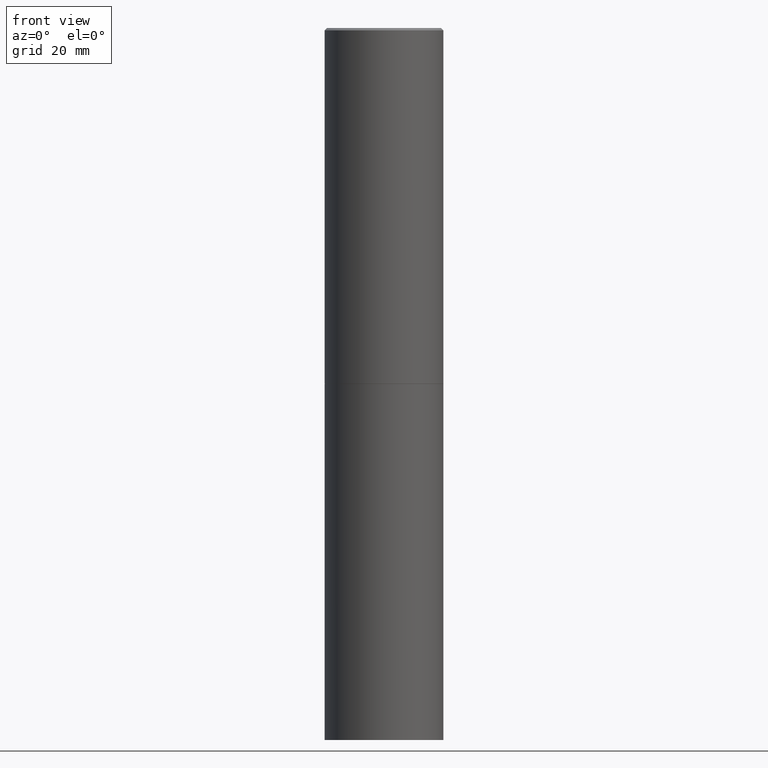
[diagram: clean part render]
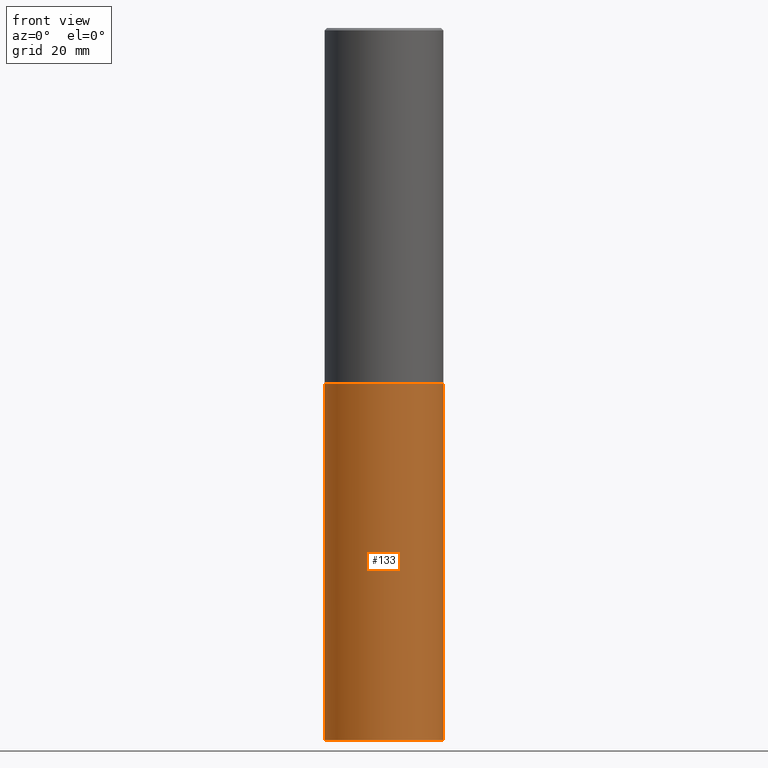
[diagram: same view with one face highlighted and labeled with its STEP entity id]
A machine part, front view. The second image highlights one B-rep face of the part: STEP entity #133.
In plain terms, the highlighted cylindrical surface (partial cylindrical patch) has radius 12.5006 mm, axis along (-0, 0, 1).
Its self-contained STEP definition (entity closure, byte-faithful):
#1 = DIRECTION ( 'NONE',  ( 1.000000000000000000, -6.982962677686265922E-15, 4.876176775795935793E-29 ) ) ;
#16 = AXIS2_PLACEMENT_3D ( 'NONE', #224, #110, #1 ) ;
#30 = ORIENTED_EDGE ( 'NONE', *, *, #206, .T. ) ;
#32 = VECTOR ( 'NONE', #118, 39.37007874015748143 ) ;
#33 = CARTESIAN_POINT ( 'NONE',  ( 0.4921499999999999764, -3.436665081823295777E-15, 2.399810400207969603E-29 ) ) ;
#46 = VERTEX_POINT ( 'NONE', #193 ) ;
#54 = CARTESIAN_POINT ( 'NONE',  ( 7.220735744022852519E-29, -1.030929694920215502E-14, -2.952700000000000102 ) ) ;
#86 = DIRECTION ( 'NONE',  ( 1.000000000000000000, -6.982962677686265922E-15, 0.000000000000000000 ) ) ;
#104 = EDGE_CURVE ( 'NONE', #46, #160, #134, .T. ) ;
#107 = AXIS2_PLACEMENT_3D ( 'NONE', #143, #336, #86 ) ;
#110 = DIRECTION ( 'NONE',  ( -2.445468806185136597E-29, 3.491481338843145583E-15, 1.000000000000000000 ) ) ;
#112 = CIRCLE ( 'NONE', #107, 0.4921499999999999764 ) ;
#118 = DIRECTION ( 'NONE',  ( -2.445468806185136877E-29, 3.491481338843145188E-15, 1.000000000000000000 ) ) ;
#133 = ADVANCED_FACE ( 'NONE', ( #169 ), #253, .T. ) ;
#134 = CIRCLE ( 'NONE', #230, 0.4921499999999999764 ) ;
#138 = CARTESIAN_POINT ( 'NONE',  ( -0.4921499999999999764, -1.196718392382684217E-14, -5.905499999999999972 ) ) ;
#143 = CARTESIAN_POINT ( 'NONE',  ( 1.444171603492632270E-28, -2.061894304653819197E-14, -5.905499999999999972 ) ) ;
#154 = VERTEX_POINT ( 'NONE', #138 ) ;
#156 = EDGE_CURVE ( 'NONE', #154, #329, #112, .T. ) ;
#160 = VERTEX_POINT ( 'NONE', #257 ) ;
#162 = EDGE_LOOP ( 'NONE', ( #358, #202, #30, #243 ) ) ;
#169 = FACE_OUTER_BOUND ( 'NONE', #162, .T. ) ;
#180 = LINE ( 'NONE', #345, #292 ) ;
#193 = CARTESIAN_POINT ( 'NONE',  ( -0.4921499999999999764, -1.196718392382684217E-14, -2.952700000000000102 ) ) ;
#202 = ORIENTED_EDGE ( 'NONE', *, *, #156, .T. ) ;
#204 = LINE ( 'NONE', #33, #32 ) ;
#206 = EDGE_CURVE ( 'NONE', #329, #160, #204, .T. ) ;
#222 = DIRECTION ( 'NONE',  ( 1.000000000000000000, -6.982962677686265922E-15, 0.000000000000000000 ) ) ;
#224 = CARTESIAN_POINT ( 'NONE',  ( 0.000000000000000000, 0.000000000000000000, 0.000000000000000000 ) ) ;
#230 = AXIS2_PLACEMENT_3D ( 'NONE', #54, #312, #222 ) ;
#243 = ORIENTED_EDGE ( 'NONE', *, *, #104, .F. ) ;
#253 = CYLINDRICAL_SURFACE ( 'NONE', #16, 0.4921499999999999764 ) ;
#257 = CARTESIAN_POINT ( 'NONE',  ( 0.4921499999999999764, -1.374596203102545079E-14, -2.952700000000000102 ) ) ;
#289 = DIRECTION ( 'NONE',  ( -2.445468806185136877E-29, 3.491481338843145188E-15, 1.000000000000000000 ) ) ;
#292 = VECTOR ( 'NONE', #289, 39.37007874015748143 ) ;
#312 = DIRECTION ( 'NONE',  ( -2.445468806185136597E-29, 3.491481338843145583E-15, 1.000000000000000000 ) ) ;
#316 = EDGE_CURVE ( 'NONE', #154, #46, #180, .T. ) ;
#329 = VERTEX_POINT ( 'NONE', #346 ) ;
#336 = DIRECTION ( 'NONE',  ( -2.445468806185136597E-29, 3.491481338843145583E-15, 1.000000000000000000 ) ) ;
#345 = CARTESIAN_POINT ( 'NONE',  ( -0.4921499999999999764, 3.496936074043332897E-15, -2.420853904668951509E-29 ) ) ;
#346 = CARTESIAN_POINT ( 'NONE',  ( 0.4921499999999999764, -2.405560812836148932E-14, -5.905499999999999972 ) ) ;
#358 = ORIENTED_EDGE ( 'NONE', *, *, #316, .F. ) ;